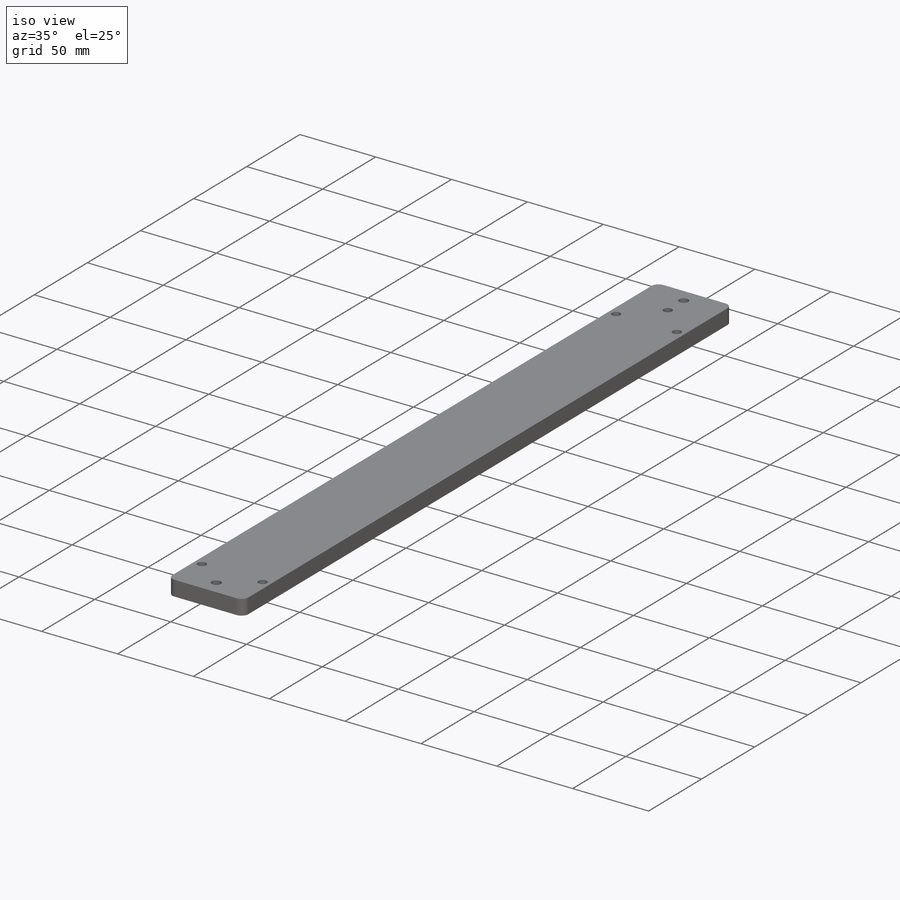
[diagram: iso view]
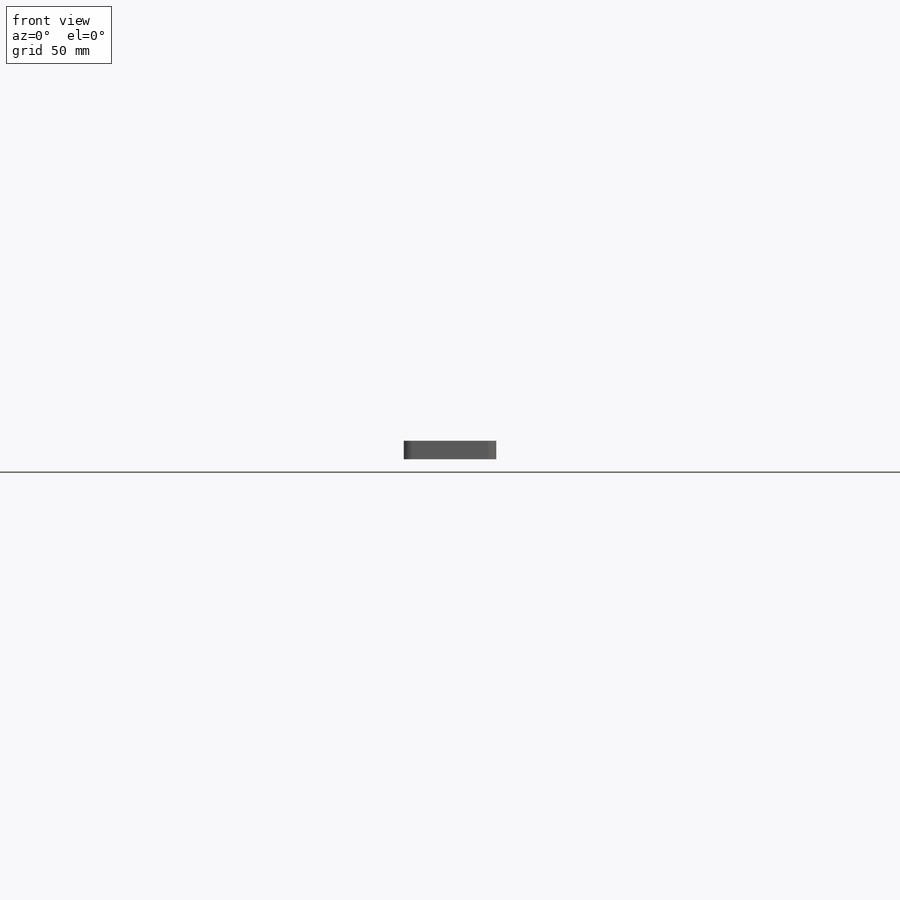
[diagram: front view]
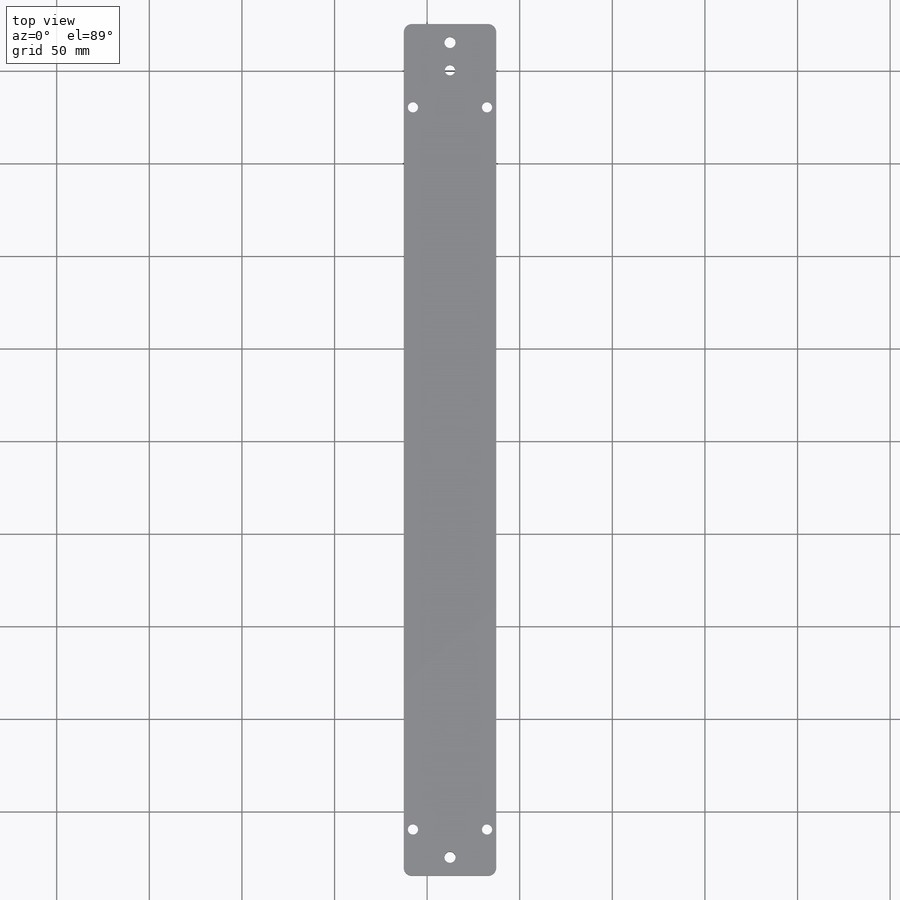
[diagram: top view]
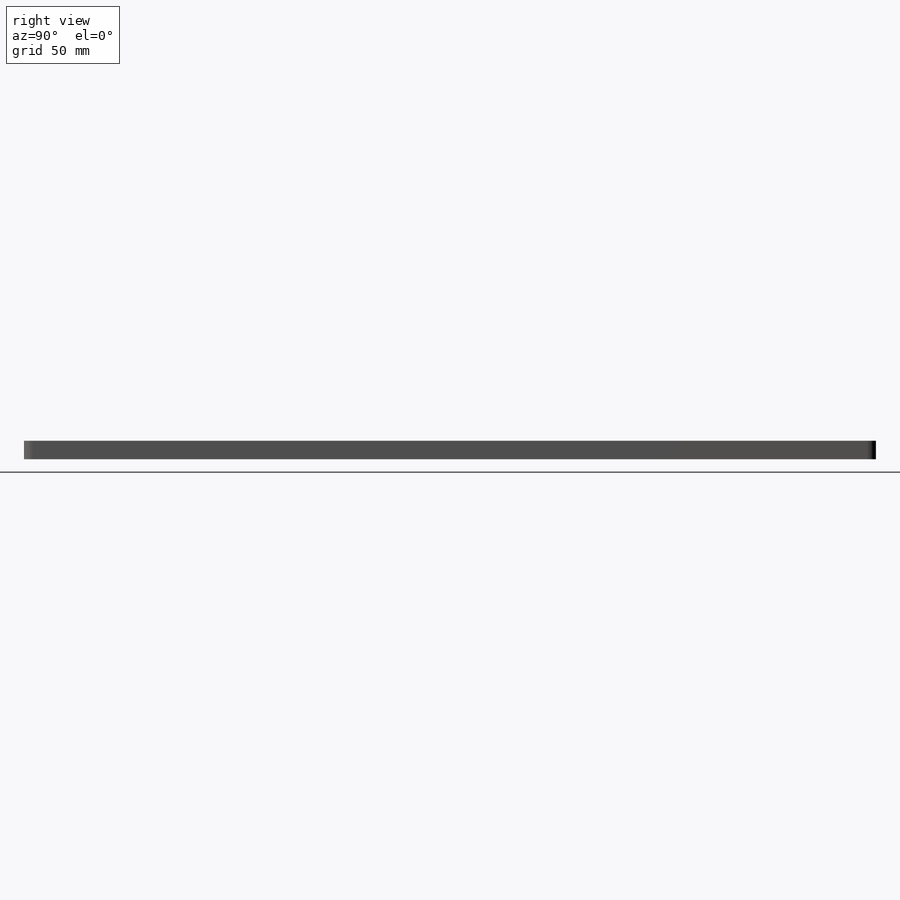
[diagram: right view]
SOLIDWORKS PART (.sldprt)
format: sldprt  version: not decoded by parser v0  size: 179,200 bytes
history: native  units: mm
features: sketch x6, cut_extrude x5, material x1, extrude x1, fillet x1 (+11 scaffold rows collapsed)
feature tree (25):
  scaffold x11  (default folders/planes/origin — collapsed)
  material  "Material <not specified>"
  sketch  "Sketch1"  dims[D1=460.0mm D2=50.0mm]
  extrude  "Boss-Extrude1"  Depth=10mm
  sketch  "Sketch2"  dims[c1.D1=5.5mm c1.D2=5.5mm c1.D3=5.5mm c1.D4=40.0mm c1.D5=20.0mm c1.D6=30.0612mm c1.D7=20.0mm c2.D6=15.0mm c2.D7=5.0mm c2.D8=35.0mm c2.D9=15.0mm]
  cut_extrude  "Cut-Extrude1"  [1 undecoded]
  sketch  "Sketch3"  dims[D1=9.0mm D2=9.0mm D3=9.0mm]
  cut_extrude  "Cut-Extrude2"  Depth=5.5mm
  sketch  "Sketch4"  dims[D1=5.5mm D2=5.5mm]
  cut_extrude  "Cut-Extrude3"  [1 undecoded]
  sketch  "Sketch5"  dims[D1=9.0mm D2=9.0mm]
  cut_extrude  "Cut-Extrude4"  Depth=5.5mm
  fillet  "Fillet2"  Radius=4.5mm
  sketch  "Sketch6"  dims[D2=6.0mm D6=6.0mm D1=10.0mm D3=25.0mm D4=10.0mm D5=25.0mm]
  cut_extrude  "Cut-Extrude5"  [1 undecoded]
decode coverage: 10 of 13 modeling features carry decoded parameters
note: 3 parameter values undecoded
summary: no parameter record found for 3 features
note: suppression state not decoded; provenance and decode notes live in map.json
